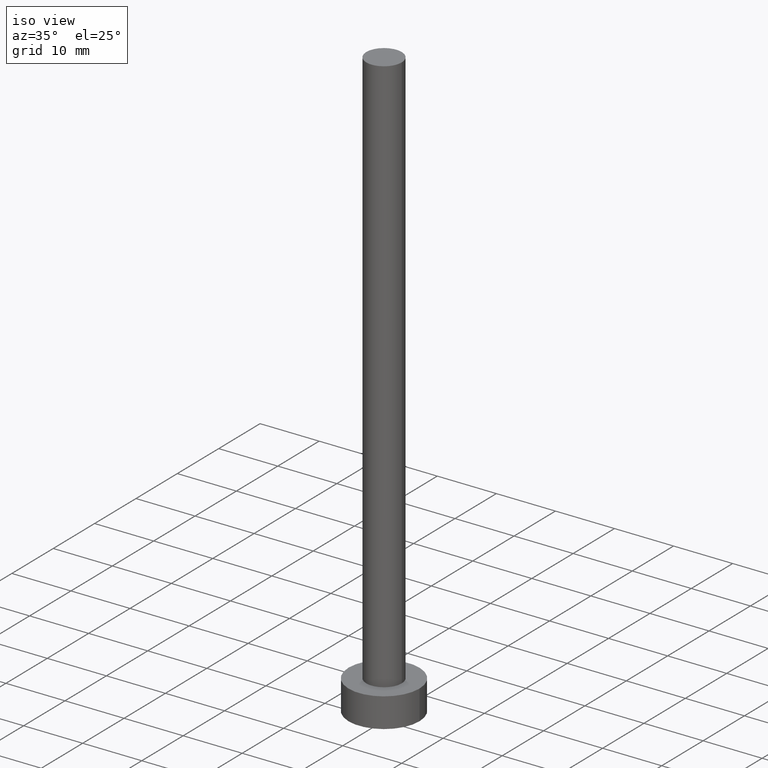
[diagram: clean part render]
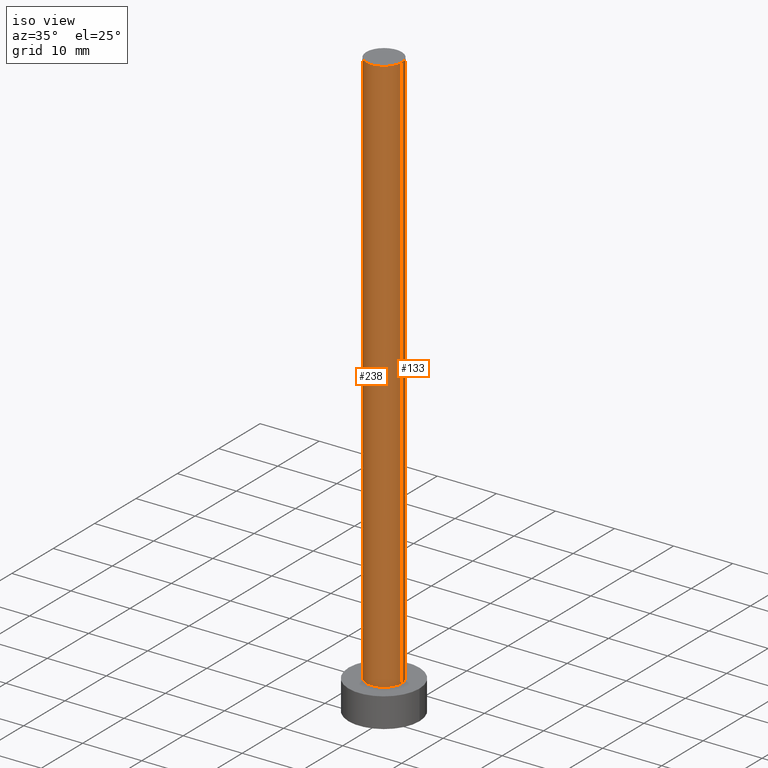
[diagram: same view with one multi-face feature highlighted, each face labeled with its STEP entity id]
A machine part, iso view. The highlighted faces form ONE feature: a constant-radius fillet chain: 2 tangent blend faces with common blend radius 3 mm. The faces share edges in the B-rep.
Their STEP definitions:
[1] entity #238 (Cylinder):
#10 = VERTEX_POINT ( 'NONE', #148 ) ;
#15 = ORIENTED_EDGE ( 'NONE', *, *, #32, .F. ) ;
#26 = CIRCLE ( 'NONE', #180, 3.000000000000000444 ) ;
#27 = LINE ( 'NONE', #252, #142 ) ;
#28 = ORIENTED_EDGE ( 'NONE', *, *, #200, .T. ) ;
#32 = EDGE_CURVE ( 'NONE', #202, #49, #178, .T. ) ;
#49 = VERTEX_POINT ( 'NONE', #237 ) ;
#52 = DIRECTION ( 'NONE',  ( 0.000000000000000000, 0.000000000000000000, 1.000000000000000000 ) ) ;
#56 = DIRECTION ( 'NONE',  ( -0.000000000000000000, -0.000000000000000000, -1.000000000000000000 ) ) ;
#66 = EDGE_LOOP ( 'NONE', ( #15, #190, #28, #175 ) ) ;
#69 = CARTESIAN_POINT ( 'NONE',  ( 0.000000000000000000, 0.000000000000000000, 100.0000000000000000 ) ) ;
#71 = CIRCLE ( 'NONE', #226, 3.000000000000000444 ) ;
#81 = EDGE_CURVE ( 'NONE', #10, #202, #26, .T. ) ;
#83 = CARTESIAN_POINT ( 'NONE',  ( 0.000000000000000000, 0.000000000000000000, 5.000000000000000000 ) ) ;
#90 = DIRECTION ( 'NONE',  ( -1.000000000000000000, 0.000000000000000000, 0.000000000000000000 ) ) ;
#99 = EDGE_CURVE ( 'NONE', #126, #49, #71, .T. ) ;
#105 = FACE_OUTER_BOUND ( 'NONE', #66, .T. ) ;
#106 = DIRECTION ( 'NONE',  ( -0.000000000000000000, -0.000000000000000000, -1.000000000000000000 ) ) ;
#109 = CARTESIAN_POINT ( 'NONE',  ( 3.000000000000000444, 3.673940397442060361E-16, 100.0000000000000000 ) ) ;
#122 = DIRECTION ( 'NONE',  ( 1.000000000000000000, 0.000000000000000000, 0.000000000000000000 ) ) ;
#126 = VERTEX_POINT ( 'NONE', #232 ) ;
#142 = VECTOR ( 'NONE', #106, 1000.000000000000000 ) ;
#143 = DIRECTION ( 'NONE',  ( 1.000000000000000000, 0.000000000000000000, 0.000000000000000000 ) ) ;
#145 = VECTOR ( 'NONE', #234, 1000.000000000000000 ) ;
#148 = CARTESIAN_POINT ( 'NONE',  ( -3.000000000000000444, 0.000000000000000000, 100.0000000000000000 ) ) ;
#159 = AXIS2_PLACEMENT_3D ( 'NONE', #69, #56, #90 ) ;
#169 = CARTESIAN_POINT ( 'NONE',  ( 3.000000000000000444, 3.673940397442060361E-16, 100.0000000000000000 ) ) ;
#171 = DIRECTION ( 'NONE',  ( 0.000000000000000000, 0.000000000000000000, 1.000000000000000000 ) ) ;
#175 = ORIENTED_EDGE ( 'NONE', *, *, #99, .T. ) ;
#178 = LINE ( 'NONE', #109, #145 ) ;
#180 = AXIS2_PLACEMENT_3D ( 'NONE', #227, #52, #143 ) ;
#190 = ORIENTED_EDGE ( 'NONE', *, *, #81, .F. ) ;
#194 = CYLINDRICAL_SURFACE ( 'NONE', #159, 3.000000000000000444 ) ;
#200 = EDGE_CURVE ( 'NONE', #10, #126, #27, .T. ) ;
#202 = VERTEX_POINT ( 'NONE', #169 ) ;
#226 = AXIS2_PLACEMENT_3D ( 'NONE', #83, #171, #122 ) ;
#227 = CARTESIAN_POINT ( 'NONE',  ( 0.000000000000000000, 0.000000000000000000, 100.0000000000000000 ) ) ;
#232 = CARTESIAN_POINT ( 'NONE',  ( -3.000000000000000444, 0.000000000000000000, 5.000000000000000000 ) ) ;
#234 = DIRECTION ( 'NONE',  ( -0.000000000000000000, -0.000000000000000000, -1.000000000000000000 ) ) ;
#237 = CARTESIAN_POINT ( 'NONE',  ( 3.000000000000000444, 3.673940397442060361E-16, 5.000000000000000000 ) ) ;
#238 = ADVANCED_FACE ( 'NONE', ( #105 ), #194, .T. ) ;
#252 = CARTESIAN_POINT ( 'NONE',  ( -3.000000000000000444, 0.000000000000000000, 100.0000000000000000 ) ) ;
[2] entity #133 (Cylinder):
#10 = VERTEX_POINT ( 'NONE', #148 ) ;
#27 = LINE ( 'NONE', #252, #142 ) ;
#32 = EDGE_CURVE ( 'NONE', #202, #49, #178, .T. ) ;
#33 = DIRECTION ( 'NONE',  ( -0.000000000000000000, -0.000000000000000000, -1.000000000000000000 ) ) ;
#40 = EDGE_CURVE ( 'NONE', #49, #126, #162, .T. ) ;
#43 = AXIS2_PLACEMENT_3D ( 'NONE', #112, #68, #219 ) ;
#48 = CARTESIAN_POINT ( 'NONE',  ( 0.000000000000000000, 0.000000000000000000, 100.0000000000000000 ) ) ;
#49 = VERTEX_POINT ( 'NONE', #237 ) ;
#59 = DIRECTION ( 'NONE',  ( 1.000000000000000000, 0.000000000000000000, 0.000000000000000000 ) ) ;
#68 = DIRECTION ( 'NONE',  ( 0.000000000000000000, 0.000000000000000000, 1.000000000000000000 ) ) ;
#85 = DIRECTION ( 'NONE',  ( -1.000000000000000000, 0.000000000000000000, 0.000000000000000000 ) ) ;
#106 = DIRECTION ( 'NONE',  ( -0.000000000000000000, -0.000000000000000000, -1.000000000000000000 ) ) ;
#109 = CARTESIAN_POINT ( 'NONE',  ( 3.000000000000000444, 3.673940397442060361E-16, 100.0000000000000000 ) ) ;
#112 = CARTESIAN_POINT ( 'NONE',  ( 0.000000000000000000, 0.000000000000000000, 5.000000000000000000 ) ) ;
#114 = EDGE_CURVE ( 'NONE', #202, #10, #138, .T. ) ;
#121 = FACE_OUTER_BOUND ( 'NONE', #153, .T. ) ;
#125 = DIRECTION ( 'NONE',  ( 0.000000000000000000, 0.000000000000000000, 1.000000000000000000 ) ) ;
#126 = VERTEX_POINT ( 'NONE', #232 ) ;
#133 = ADVANCED_FACE ( 'NONE', ( #121 ), #246, .T. ) ;
#135 = AXIS2_PLACEMENT_3D ( 'NONE', #48, #33, #85 ) ;
#138 = CIRCLE ( 'NONE', #165, 3.000000000000000444 ) ;
#142 = VECTOR ( 'NONE', #106, 1000.000000000000000 ) ;
#145 = VECTOR ( 'NONE', #234, 1000.000000000000000 ) ;
#148 = CARTESIAN_POINT ( 'NONE',  ( -3.000000000000000444, 0.000000000000000000, 100.0000000000000000 ) ) ;
#152 = ORIENTED_EDGE ( 'NONE', *, *, #200, .F. ) ;
#153 = EDGE_LOOP ( 'NONE', ( #254, #170, #212, #152 ) ) ;
#162 = CIRCLE ( 'NONE', #43, 3.000000000000000444 ) ;
#165 = AXIS2_PLACEMENT_3D ( 'NONE', #197, #125, #59 ) ;
#169 = CARTESIAN_POINT ( 'NONE',  ( 3.000000000000000444, 3.673940397442060361E-16, 100.0000000000000000 ) ) ;
#170 = ORIENTED_EDGE ( 'NONE', *, *, #32, .T. ) ;
#178 = LINE ( 'NONE', #109, #145 ) ;
#197 = CARTESIAN_POINT ( 'NONE',  ( 0.000000000000000000, 0.000000000000000000, 100.0000000000000000 ) ) ;
#200 = EDGE_CURVE ( 'NONE', #10, #126, #27, .T. ) ;
#202 = VERTEX_POINT ( 'NONE', #169 ) ;
#212 = ORIENTED_EDGE ( 'NONE', *, *, #40, .T. ) ;
#219 = DIRECTION ( 'NONE',  ( 1.000000000000000000, 0.000000000000000000, 0.000000000000000000 ) ) ;
#232 = CARTESIAN_POINT ( 'NONE',  ( -3.000000000000000444, 0.000000000000000000, 5.000000000000000000 ) ) ;
#234 = DIRECTION ( 'NONE',  ( -0.000000000000000000, -0.000000000000000000, -1.000000000000000000 ) ) ;
#237 = CARTESIAN_POINT ( 'NONE',  ( 3.000000000000000444, 3.673940397442060361E-16, 5.000000000000000000 ) ) ;
#246 = CYLINDRICAL_SURFACE ( 'NONE', #135, 3.000000000000000444 ) ;
#252 = CARTESIAN_POINT ( 'NONE',  ( -3.000000000000000444, 0.000000000000000000, 100.0000000000000000 ) ) ;
#254 = ORIENTED_EDGE ( 'NONE', *, *, #114, .F. ) ;